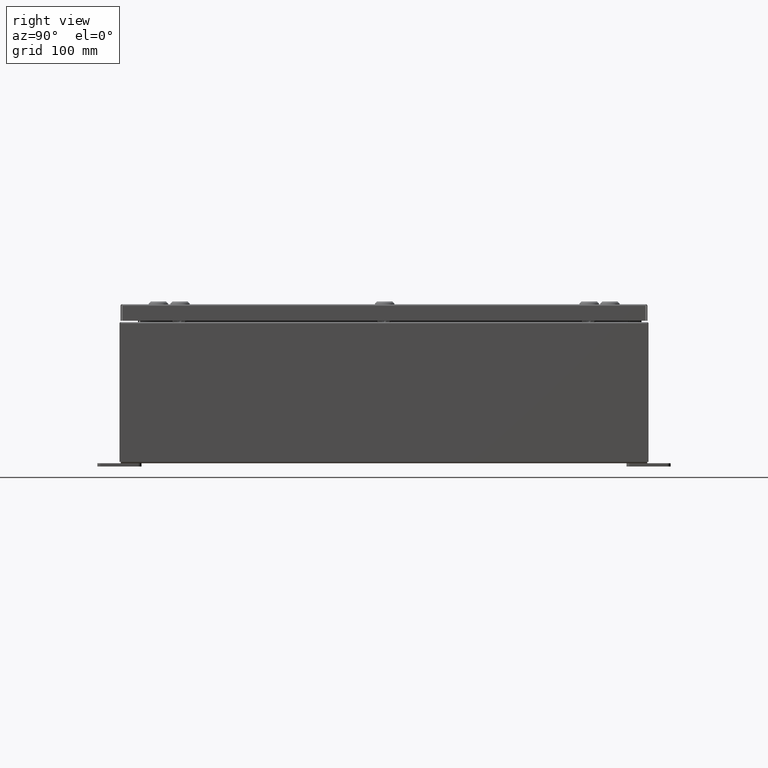
[diagram: clean part render]
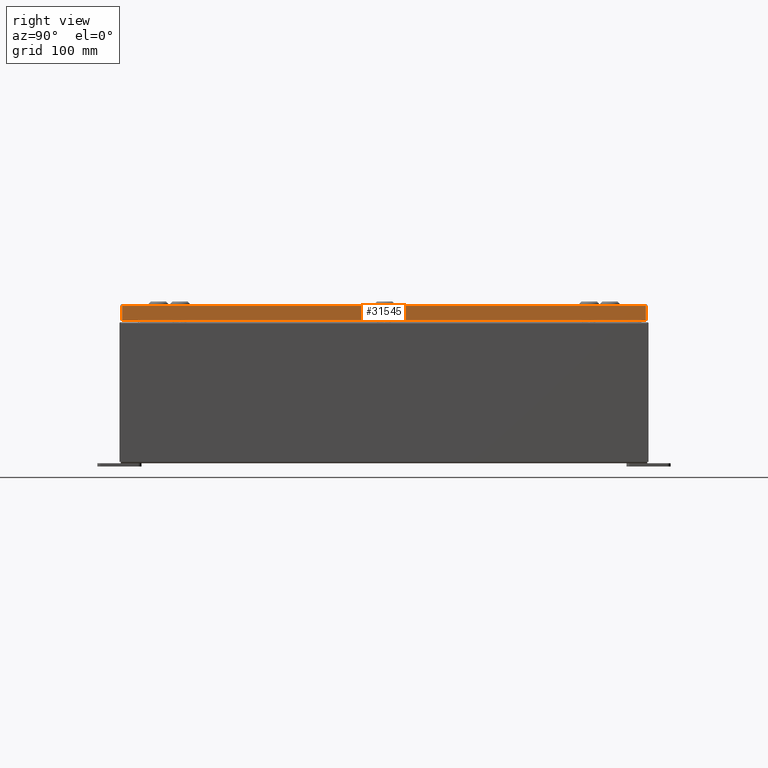
[diagram: same view with one face highlighted and labeled with its STEP entity id]
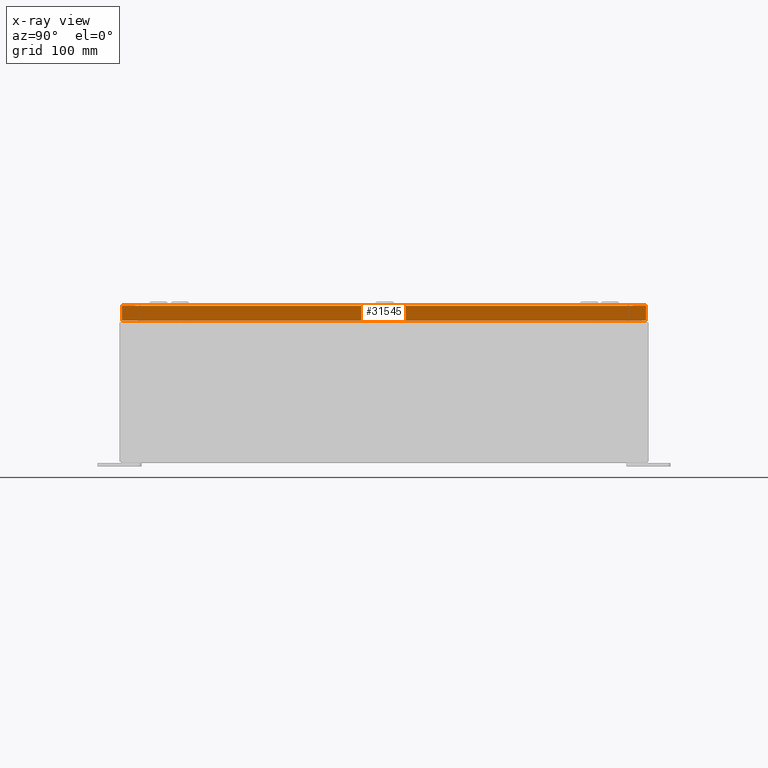
[diagram: x-ray of the same camera — body ghosted, the highlighted face saturated]
A machine part, right view. The second image highlights one B-rep face of the part: STEP entity #31545.
The next image is the same camera in x-ray: the body ghosted, the highlighted face saturated — about 0% of this face is hidden behind the body in this view.
In plain terms, the highlighted planar face has unit normal (1, 0, 0).
Its self-contained STEP definition (entity closure, byte-faithful):
#3989 = ORIENTED_EDGE ( 'NONE', *, *, #34105, .F. ) ;
#4024 = VECTOR ( 'NONE', #27722, 39.37007874015748100 ) ;
#4160 = EDGE_CURVE ( 'NONE', #59104, #4636, #53036, .T. ) ;
#4636 = VERTEX_POINT ( 'NONE', #19183 ) ;
#7757 = VECTOR ( 'NONE', #45495, 39.37007874015748100 ) ;
#8897 = VECTOR ( 'NONE', #29451, 39.37007874015748100 ) ;
#11761 = ORIENTED_EDGE ( 'NONE', *, *, #14216, .F. ) ;
#14216 = EDGE_CURVE ( 'NONE', #30111, #42141, #20930, .T. ) ;
#14951 = CARTESIAN_POINT ( 'NONE',  ( 11.93750000000000200, 14.84865786437627800, -0.9376999999999997600 ) ) ;
#17179 = LINE ( 'NONE', #47433, #4024 ) ;
#19183 = CARTESIAN_POINT ( 'NONE',  ( 11.93750000000000000, -14.84865786437626400, -0.08770000000000008300 ) ) ;
#20617 = CARTESIAN_POINT ( 'NONE',  ( 11.93750000000000200, -14.93749999999999500, -0.9376999999999997600 ) ) ;
#20930 = LINE ( 'NONE', #20617, #7757 ) ;
#24729 = VECTOR ( 'NONE', #30246, 39.37007874015748100 ) ;
#27128 = CARTESIAN_POINT ( 'NONE',  ( 11.93750000000000000, 0.0000000000000000000, 3.049157650594635900E-014 ) ) ;
#27722 = DIRECTION ( 'NONE',  ( -2.532419924601866100E-015, -6.982962677686265900E-015, 1.000000000000000000 ) ) ;
#29451 = DIRECTION ( 'NONE',  ( 0.0000000000000000000, -1.000000000000000000, 0.0000000000000000000 ) ) ;
#29876 = CARTESIAN_POINT ( 'NONE',  ( 11.93750000000000000, 0.0000000000000000000, -0.08770000000000008300 ) ) ;
#30111 = VERTEX_POINT ( 'NONE', #14951 ) ;
#30246 = DIRECTION ( 'NONE',  ( -2.532419924601866100E-015, -6.982962677686265900E-015, 1.000000000000000000 ) ) ;
#30537 = FACE_OUTER_BOUND ( 'NONE', #52725, .T. ) ;
#31545 = ADVANCED_FACE ( 'NONE', ( #30537 ), #51805, .T. ) ;
#32117 = DIRECTION ( 'NONE',  ( 2.532419924601866100E-015, 0.0000000000000000000, -1.000000000000000000 ) ) ;
#34105 = EDGE_CURVE ( 'NONE', #42141, #4636, #17179, .T. ) ;
#37830 = LINE ( 'NONE', #54954, #24729 ) ;
#39063 = EDGE_CURVE ( 'NONE', #30111, #59104, #37830, .T. ) ;
#42141 = VERTEX_POINT ( 'NONE', #52785 ) ;
#45495 = DIRECTION ( 'NONE',  ( 0.0000000000000000000, -1.000000000000000000, 0.0000000000000000000 ) ) ;
#47433 = CARTESIAN_POINT ( 'NONE',  ( 11.93750000000000000, -14.84865786437626400, -0.07469999999999980800 ) ) ;
#50499 = ORIENTED_EDGE ( 'NONE', *, *, #39063, .T. ) ;
#51805 = PLANE ( 'NONE',  #54404 ) ;
#52725 = EDGE_LOOP ( 'NONE', ( #3989, #11761, #50499, #59819 ) ) ;
#52785 = CARTESIAN_POINT ( 'NONE',  ( 11.93750000000000200, -14.84865786437625900, -0.9376999999999997600 ) ) ;
#53036 = LINE ( 'NONE', #29876, #8897 ) ;
#54404 = AXIS2_PLACEMENT_3D ( 'NONE', #27128, #61816, #32117 ) ;
#54954 = CARTESIAN_POINT ( 'NONE',  ( 11.93750000000000000, 14.84865786437627100, 1.341792001866185200E-013 ) ) ;
#59104 = VERTEX_POINT ( 'NONE', #62097 ) ;
#59819 = ORIENTED_EDGE ( 'NONE', *, *, #4160, .T. ) ;
#61816 = DIRECTION ( 'NONE',  ( 1.000000000000000000, 0.0000000000000000000, 2.532419924601866100E-015 ) ) ;
#62097 = CARTESIAN_POINT ( 'NONE',  ( 11.93750000000000000, 14.84865786437626900, -0.08770000000000008300 ) ) ;